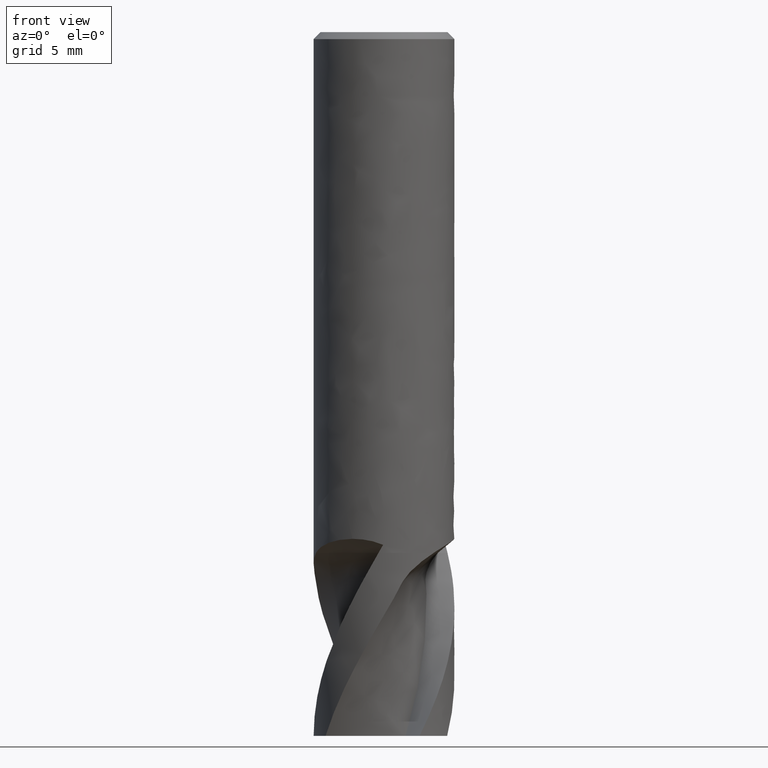
[diagram: clean part render]
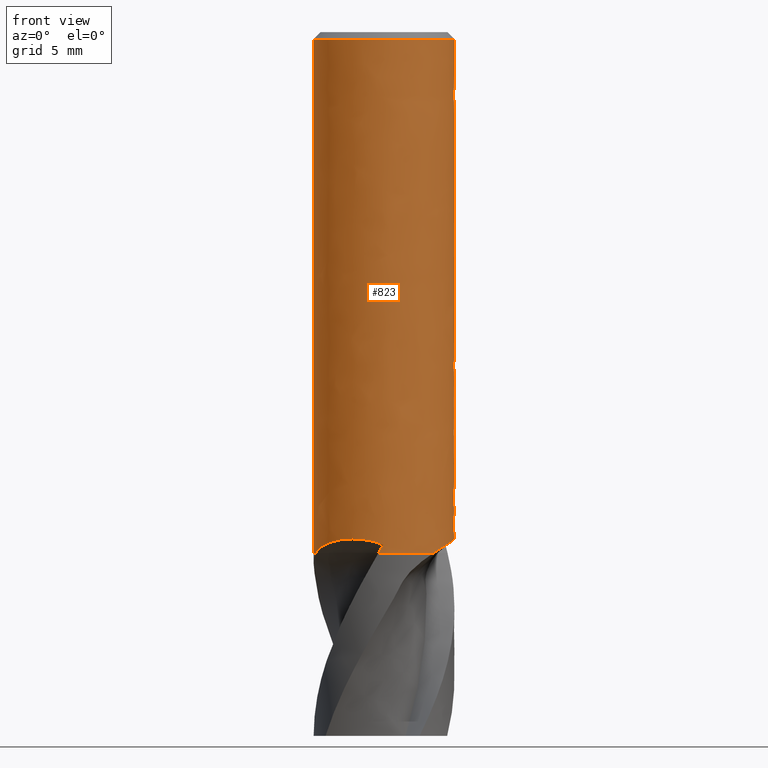
[diagram: same view with one face highlighted and labeled with its STEP entity id]
A machine part, front view. The second image highlights one B-rep face of the part: STEP entity #823.
In plain terms, the highlighted face is a freeform B-spline surface patch.
Its self-contained STEP definition (entity closure, byte-faithful):
#73 = VERTEX_POINT('', #74);
#74 = CARTESIAN_POINT('', (-5., 3.36777869765522E-16, -0.5));
#90 = EDGE_CURVE('', #73, #73, #91, .T.);
#91 = CIRCLE('', #92, 5.);
#92 = AXIS2_PLACEMENT_3D('', #93, #94, #95);
#93 = CARTESIAN_POINT('', (1.87469972832734E-33, 3.06161699786842E-17, -0.5));
#94 = DIRECTION('', (3.74939945665464E-33, 6.12323399573677E-17, -1.));
#95 = DIRECTION('', (-1., 6.12323399573677E-17, 0.));
#128 = EDGE_CURVE('', #129, #131, #133, .T.);
#129 = VERTEX_POINT('', #130);
#130 = CARTESIAN_POINT('', (3.57071421427142, 3.5, -16.5));
#131 = VERTEX_POINT('', #132);
#132 = CARTESIAN_POINT('', (3.57071421427142, 3.5, -23.5));
#133 = LINE('', #134, #135);
#134 = CARTESIAN_POINT('', (3.57071421427142, 3.5, -16.5));
#135 = VECTOR('', #136, 7.);
#136 = DIRECTION('', (0., 4.44089209850063E-16, -7.));
#139 = VERTEX_POINT('', #140);
#140 = CARTESIAN_POINT('', (-3.57071421427142, 3.5, -23.5));
#146 = EDGE_CURVE('', #147, #139, #149, .T.);
#147 = VERTEX_POINT('', #148);
#148 = CARTESIAN_POINT('', (-3.57071421427142, 3.5, -16.5));
#149 = LINE('', #150, #151);
#150 = CARTESIAN_POINT('', (-3.57071421427142, 3.5, -16.5));
#151 = VECTOR('', #152, 7.);
#152 = DIRECTION('', (-8.88178419700125E-16, 0., -7.));
#168 = EDGE_CURVE('', #139, #131, #169, .T.);
#169 = B_SPLINE_CURVE_WITH_KNOTS('', 3, (#170, #171, #172, #173, #174, #175, #176, #177, #178, #179, #180, #181, #182, #183, #184, #185, #186, #187, #188, #189, #190, #191, #192, #193, #194, #195, #196, #197, #198, #199, #200, #201, #202, #203, #204, #205, #206, #207, #208, #209, #210, #211, #212, #213, #214, #215, #216, #217, #218, #219, #220, #221, #222, #223, #224, #225, #226, #227, #228, #229, #230, #231, #232, #233, #234, #235, #236, #237, #238, #239, #240, #241, #242, #243, #244, #245), .UNSPECIFIED., .F., .U., (4, 3, 3, 3, 3, 3, 3, 3, 3, 3, 3, 3, 3, 3, 3, 3, 3, 3, 3, 3, 3, 3, 3, 3, 3, 4), (0., 0.443468649789136, 0.886759988140893, 1.32984152591458, 1.77267283862577, 2.21520517630396, 2.51020893408757, 2.80508585275751, 3.09982399025188, 3.39441275289527, 3.68884404188132, 3.98311346905247, 4.33160163163529, 4.62744317434539, 4.92482118336704, 5.22201870337627, 5.51902941012041, 5.81585394870993, 6.11249887518107, 6.40897511357989, 6.70529631155348, 7.00147737543795, 7.2975333287756, 7.74176412024763, 8.18566547319176, 8.66341025846285), .UNSPECIFIED.);
#170 = CARTESIAN_POINT('', (-3.57071421427142, 3.5, -23.5));
#171 = CARTESIAN_POINT('', (-3.48700730382718, 3.58539812998743, -23.5869017684212));
#172 = CARTESIAN_POINT('', (-3.39916377603425, 3.66888595387015, -23.6718595952275));
#173 = CARTESIAN_POINT('', (-3.30719006709263, 3.74999918134983, -23.7544010151786));
#174 = CARTESIAN_POINT('', (-3.21525313186779, 3.83107997744351, -23.8369094327116));
#175 = CARTESIAN_POINT('', (-3.11906671622979, 3.90989436363995, -23.9171115347777));
#176 = CARTESIAN_POINT('', (-3.018700637755, 3.98590597726775, -23.9944615147571));
#177 = CARTESIAN_POINT('', (-2.91838206045937, 4.06188161617847, -24.0717748865984));
#178 = CARTESIAN_POINT('', (-2.81373073052818, 4.13517346377029, -24.1463572125526));
#179 = CARTESIAN_POINT('', (-2.70491450565913, 4.20516795349213, -24.2175841227608));
#180 = CARTESIAN_POINT('', (-2.59615973346718, 4.27512291465305, -24.2887708084133));
#181 = CARTESIAN_POINT('', (-2.48304396851809, 4.34190978304565, -24.3567336194432));
#182 = CARTESIAN_POINT('', (-2.36587881626761, 4.40484022715244, -24.4207721046093));
#183 = CARTESIAN_POINT('', (-2.24879276740087, 4.46772818412912, -24.4847673545577));
#184 = CARTESIAN_POINT('', (-2.12740790123163, 4.52689698961025, -24.5449779684482));
#185 = CARTESIAN_POINT('', (-2.00223466237746, 4.58159975955716, -24.6006439115622));
#186 = CARTESIAN_POINT('', (-1.91879087151313, 4.61806607246025, -24.6377523011669));
#187 = CARTESIAN_POINT('', (-1.83355420105374, 4.65259752685798, -24.6728917644521));
#188 = CARTESIAN_POINT('', (-1.74673807718801, 4.68496596462576, -24.7058301260235));
#189 = CARTESIAN_POINT('', (-1.65995928057631, 4.71732048533706, -24.7387543254954));
#190 = CARTESIAN_POINT('', (-1.57149440783041, 4.74755320636072, -24.7695193659188));
#191 = CARTESIAN_POINT('', (-1.48161398798959, 4.77543924582795, -24.7978964058413));
#192 = CARTESIAN_POINT('', (-1.39177586956178, 4.80331216098096, -24.8262600903647));
#193 = CARTESIAN_POINT('', (-1.30040095201485, 4.82887767849311, -24.8522757499902));
#194 = CARTESIAN_POINT('', (-1.20782059197667, 4.85192430048093, -24.8757281629081));
#195 = CARTESIAN_POINT('', (-1.11528715215589, 4.87495924231852, -24.8991686900187));
#196 = CARTESIAN_POINT('', (-1.02141258642229, 4.89551097389567, -24.92008228401));
#197 = CARTESIAN_POINT('', (-0.92658859079542, 4.91339328605068, -24.9382794570624));
#198 = CARTESIAN_POINT('', (-0.831815283732707, 4.93126603914081, -24.9564669027396));
#199 = CARTESIAN_POINT('', (-0.735943631251918, 4.94649964746766, -24.9719687351947));
#200 = CARTESIAN_POINT('', (-0.63941961200005, 4.95894571051043, -24.9846339409604));
#201 = CARTESIAN_POINT('', (-0.542948656242189, 4.97138493140556, -24.9972921841061));
#202 = CARTESIAN_POINT('', (-0.445665514944968, 4.98105970853072, -25.007137308834));
#203 = CARTESIAN_POINT('', (-0.348058242038245, 4.98787083434899, -25.0140683608211));
#204 = CARTESIAN_POINT('', (-0.232466963946686, 4.99593690068945, -25.0222764495614));
#205 = CARTESIAN_POINT('', (-0.11616272086094, 5., -25.0264110894582));
#206 = CARTESIAN_POINT('', (4.72269969473152E-16, 5., -25.0264110894582));
#207 = CARTESIAN_POINT('', (0.0986138475700333, 5., -25.0264110894582));
#208 = CARTESIAN_POINT('', (0.197314628692681, 4.9970748006527, -25.0234343849765));
#209 = CARTESIAN_POINT('', (0.295578376007081, 4.9912556960786, -25.0175128211414));
#210 = CARTESIAN_POINT('', (0.394352460497299, 4.98540636972408, -25.0115605033991));
#211 = CARTESIAN_POINT('', (0.492858652975935, 4.97662298904286, -25.0026224702826));
#212 = CARTESIAN_POINT('', (0.590587307962138, 4.96499815021859, -24.9907929483529));
#213 = CARTESIAN_POINT('', (0.688256648043103, 4.9533803669116, -24.9789706061698));
#214 = CARTESIAN_POINT('', (0.785316321360413, 4.9389053875585, -24.964240760167));
#215 = CARTESIAN_POINT('', (0.88129942868599, 4.92171832970943, -24.9467510830363));
#216 = CARTESIAN_POINT('', (0.977222202676108, 4.90454207535022, -24.9292723996168));
#217 = CARTESIAN_POINT('', (1.07222564487661, 4.88463012016027, -24.909009846807));
#218 = CARTESIAN_POINT('', (1.16589904343752, 4.86216818101878, -24.8861524114761));
#219 = CARTESIAN_POINT('', (1.25951372693075, 4.83972032116018, -24.8633093033276));
#220 = CARTESIAN_POINT('', (1.35194225444139, 4.81469255915962, -24.8378408676863));
#221 = CARTESIAN_POINT('', (1.44283688724849, 4.78729795571522, -24.8099639166937));
#222 = CARTESIAN_POINT('', (1.5336765186139, 4.75991992907671, -24.7821038343814));
#223 = CARTESIAN_POINT('', (1.62311127917806, 4.7301406002008, -24.7518001691595));
#224 = CARTESIAN_POINT('', (1.71085713788038, 4.69818772014953, -24.7192846821926));
#225 = CARTESIAN_POINT('', (1.79855309962361, 4.6662530102042, -24.6867876852598));
#226 = CARTESIAN_POINT('', (1.88467390034474, 4.63210744654394, -24.6520409072419));
#227 = CARTESIAN_POINT('', (1.9689953770587, 4.59598272463262, -24.6152801231559));
#228 = CARTESIAN_POINT('', (2.05327275837509, 4.55987689392243, -24.5785385628958));
#229 = CARTESIAN_POINT('', (2.13584972519196, 4.52175325222978, -24.5397436632623));
#230 = CARTESIAN_POINT('', (2.2165553058254, 4.48183919571166, -24.499126824266));
#231 = CARTESIAN_POINT('', (2.29722271975626, 4.441944015062, -24.4585291934929));
#232 = CARTESIAN_POINT('', (2.37610387199879, 4.40021961589676, -24.4160701364351));
#233 = CARTESIAN_POINT('', (2.45307301645999, 4.35688337873714, -24.3719708611179));
#234 = CARTESIAN_POINT('', (2.53000964820203, 4.3135654473404, -24.3278902138803));
#235 = CARTESIAN_POINT('', (2.60510699224168, 4.268597611965, -24.2821306121563));
#236 = CARTESIAN_POINT('', (2.67827641976912, 4.22218372638007, -24.2348994990485));
#237 = CARTESIAN_POINT('', (2.78806685747398, 4.15253987393854, -24.164029399929));
#238 = CARTESIAN_POINT('', (2.89367568039574, 4.07953773941852, -24.0897418881387));
#239 = CARTESIAN_POINT('', (2.99492394308079, 4.00380201498053, -24.0126726550385));
#240 = CARTESIAN_POINT('', (3.09609712074416, 3.92812245563972, -23.9356605759564));
#241 = CARTESIAN_POINT('', (3.19307732202845, 3.84959555644267, -23.8557510227863));
#242 = CARTESIAN_POINT('', (3.28578814351442, 3.7687658823467, -23.7734981488547));
#243 = CARTESIAN_POINT('', (3.38556732014761, 3.68177368230406, -23.6849742429604));
#244 = CARTESIAN_POINT('', (3.48053751299862, 3.59199863686598, -23.5936184930182));
#245 = CARTESIAN_POINT('', (3.57071421427142, 3.5, -23.5));
#256 = EDGE_CURVE('', #147, #129, #257, .T.);
#257 = B_SPLINE_CURVE_WITH_KNOTS('', 3, (#258, #259, #260, #261, #262, #263, #264, #265, #266, #267, #268, #269, #270, #271, #272, #273, #274, #275, #276, #277, #278, #279, #280, #281, #282, #283, #284, #285, #286, #287, #288, #289, #290, #291, #292, #293, #294, #295, #296, #297, #298, #299, #300, #301, #302, #303, #304, #305, #306, #307, #308, #309, #310, #311, #312, #313, #314, #315, #316, #317, #318, #319, #320, #321, #322, #323, #324, #325, #326, #327, #328, #329, #330, #331, #332, #333, #334, #335, #336, #337, #338, #339), .UNSPECIFIED., .F., .U., (4, 3, 3, 3, 3, 3, 3, 3, 3, 3, 3, 3, 3, 3, 3, 3, 3, 3, 3, 3, 3, 3, 3, 3, 3, 3, 3, 4), (0., 0.0341138844018456, 0.477744785271092, 0.921646138215224, 1.36587692968725, 1.66193288302491, 1.95811394690937, 2.25443514488297, 2.55091138328178, 2.84755630975292, 3.14438084834244, 3.44139155508659, 3.73858907509581, 4.03596708411747, 4.33180862682757, 4.62765016953766, 4.92502817855932, 5.22222569856855, 5.51923640531269, 5.81606094390221, 6.11270587037335, 6.40918210877216, 6.70550330674576, 7.00168437063023, 7.29774032396788, 7.74197111543991, 8.18587246838404, 8.66361725365513), .UNSPECIFIED.);
#258 = CARTESIAN_POINT('', (-3.57071421427142, 3.5, -16.5));
#259 = CARTESIAN_POINT('', (-3.56427504914016, 3.50656926241778, -16.4933150699973));
#260 = CARTESIAN_POINT('', (-3.55781171392695, 3.51312691832153, -16.4866419508691));
#261 = CARTESIAN_POINT('', (-3.55132420209363, 3.51967277053197, -16.4799808432664));
#262 = CARTESIAN_POINT('', (-3.46695794567111, 3.60479770907222, -16.3933570764815));
#263 = CARTESIAN_POINT('', (-3.37844247985145, 3.68798545467209, -16.3087046115544));
#264 = CARTESIAN_POINT('', (-3.28578814351442, 3.76876588234669, -16.2265018511453));
#265 = CARTESIAN_POINT('', (-3.19307732202845, 3.84959555644266, -16.1442489772137));
#266 = CARTESIAN_POINT('', (-3.09609712074417, 3.92812245563972, -16.0643394240436));
#267 = CARTESIAN_POINT('', (-2.9949239430808, 4.00380201498053, -15.9873273449615));
#268 = CARTESIAN_POINT('', (-2.89367568039574, 4.07953773941852, -15.9102581118613));
#269 = CARTESIAN_POINT('', (-2.78806685747399, 4.15253987393854, -15.835970600071));
#270 = CARTESIAN_POINT('', (-2.67827641976912, 4.22218372638007, -15.7651005009515));
#271 = CARTESIAN_POINT('', (-2.60510699224168, 4.268597611965, -15.7178693878437));
#272 = CARTESIAN_POINT('', (-2.53000964820203, 4.3135654473404, -15.6721097861197));
#273 = CARTESIAN_POINT('', (-2.45307301645999, 4.35688337873714, -15.6280291388821));
#274 = CARTESIAN_POINT('', (-2.3761038719988, 4.40021961589676, -15.5839298635649));
#275 = CARTESIAN_POINT('', (-2.29722271975626, 4.44194401506199, -15.5414708065071));
#276 = CARTESIAN_POINT('', (-2.2165553058254, 4.48183919571166, -15.500873175734));
#277 = CARTESIAN_POINT('', (-2.13584972519196, 4.52175325222978, -15.4602563367377));
#278 = CARTESIAN_POINT('', (-2.05327275837509, 4.55987689392243, -15.4214614371042));
#279 = CARTESIAN_POINT('', (-1.96899537705871, 4.59598272463262, -15.3847198768441));
#280 = CARTESIAN_POINT('', (-1.88467390034474, 4.63210744654394, -15.3479590927581));
#281 = CARTESIAN_POINT('', (-1.79855309962361, 4.6662530102042, -15.3132123147402));
#282 = CARTESIAN_POINT('', (-1.71085713788038, 4.69818772014953, -15.2807153178074));
#283 = CARTESIAN_POINT('', (-1.62311127917806, 4.7301406002008, -15.2481998308405));
#284 = CARTESIAN_POINT('', (-1.5336765186139, 4.75991992907671, -15.2178961656186));
#285 = CARTESIAN_POINT('', (-1.44283688724849, 4.78729795571522, -15.1900360833063));
#286 = CARTESIAN_POINT('', (-1.35194225444139, 4.81469255915962, -15.1621591323137));
#287 = CARTESIAN_POINT('', (-1.25951372693075, 4.83972032116018, -15.1366906966724));
#288 = CARTESIAN_POINT('', (-1.16589904343752, 4.86216818101878, -15.1138475885239));
#289 = CARTESIAN_POINT('', (-1.07222564487661, 4.88463012016027, -15.090990153193));
#290 = CARTESIAN_POINT('', (-0.977222202676108, 4.90454207535022, -15.0707276003832));
#291 = CARTESIAN_POINT('', (-0.88129942868599, 4.92171832970943, -15.0532489169637));
#292 = CARTESIAN_POINT('', (-0.785316321360414, 4.9389053875585, -15.0357592398331));
#293 = CARTESIAN_POINT('', (-0.688256648043104, 4.9533803669116, -15.0210293938302));
#294 = CARTESIAN_POINT('', (-0.59058730796214, 4.96499815021859, -15.0092070516471));
#295 = CARTESIAN_POINT('', (-0.492858652975936, 4.97662298904286, -14.9973775297174));
#296 = CARTESIAN_POINT('', (-0.394352460497301, 4.98540636972408, -14.9884394966009));
#297 = CARTESIAN_POINT('', (-0.295578376007082, 4.9912556960786, -14.9824871788586));
#298 = CARTESIAN_POINT('', (-0.197314628692681, 4.9970748006527, -14.9765656150235));
#299 = CARTESIAN_POINT('', (-0.0986138475700329, 5., -14.9735889105418));
#300 = CARTESIAN_POINT('', (4.72269969473152E-16, 5., -14.9735889105418));
#301 = CARTESIAN_POINT('', (0.0986138475700333, 5., -14.9735889105418));
#302 = CARTESIAN_POINT('', (0.197314628692681, 4.9970748006527, -14.9765656150235));
#303 = CARTESIAN_POINT('', (0.295578376007081, 4.9912556960786, -14.9824871788586));
#304 = CARTESIAN_POINT('', (0.394352460497299, 4.98540636972408, -14.9884394966009));
#305 = CARTESIAN_POINT('', (0.492858652975936, 4.97662298904286, -14.9973775297174));
#306 = CARTESIAN_POINT('', (0.590587307962139, 4.96499815021859, -15.0092070516471));
#307 = CARTESIAN_POINT('', (0.688256648043103, 4.9533803669116, -15.0210293938302));
#308 = CARTESIAN_POINT('', (0.785316321360413, 4.9389053875585, -15.035759239833));
#309 = CARTESIAN_POINT('', (0.881299428685989, 4.92171832970943, -15.0532489169637));
#310 = CARTESIAN_POINT('', (0.977222202676107, 4.90454207535022, -15.0707276003832));
#311 = CARTESIAN_POINT('', (1.07222564487661, 4.88463012016027, -15.090990153193));
#312 = CARTESIAN_POINT('', (1.16589904343752, 4.86216818101878, -15.1138475885239));
#313 = CARTESIAN_POINT('', (1.25951372693075, 4.83972032116018, -15.1366906966724));
#314 = CARTESIAN_POINT('', (1.35194225444139, 4.81469255915962, -15.1621591323137));
#315 = CARTESIAN_POINT('', (1.44283688724849, 4.78729795571522, -15.1900360833063));
#316 = CARTESIAN_POINT('', (1.5336765186139, 4.75991992907671, -15.2178961656186));
#317 = CARTESIAN_POINT('', (1.62311127917806, 4.7301406002008, -15.2481998308405));
#318 = CARTESIAN_POINT('', (1.71085713788038, 4.69818772014953, -15.2807153178074));
#319 = CARTESIAN_POINT('', (1.79855309962361, 4.6662530102042, -15.3132123147402));
#320 = CARTESIAN_POINT('', (1.88467390034474, 4.63210744654394, -15.3479590927581));
#321 = CARTESIAN_POINT('', (1.9689953770587, 4.59598272463262, -15.3847198768441));
#322 = CARTESIAN_POINT('', (2.05327275837509, 4.55987689392243, -15.4214614371042));
#323 = CARTESIAN_POINT('', (2.13584972519196, 4.52175325222978, -15.4602563367377));
#324 = CARTESIAN_POINT('', (2.2165553058254, 4.48183919571166, -15.500873175734));
#325 = CARTESIAN_POINT('', (2.29722271975626, 4.441944015062, -15.5414708065071));
#326 = CARTESIAN_POINT('', (2.3761038719988, 4.40021961589676, -15.5839298635649));
#327 = CARTESIAN_POINT('', (2.45307301645999, 4.35688337873714, -15.6280291388821));
#328 = CARTESIAN_POINT('', (2.53000964820203, 4.3135654473404, -15.6721097861197));
#329 = CARTESIAN_POINT('', (2.60510699224168, 4.268597611965, -15.7178693878437));
#330 = CARTESIAN_POINT('', (2.67827641976913, 4.22218372638007, -15.7651005009515));
#331 = CARTESIAN_POINT('', (2.78806685747399, 4.15253987393854, -15.835970600071));
#332 = CARTESIAN_POINT('', (2.89367568039574, 4.07953773941852, -15.9102581118613));
#333 = CARTESIAN_POINT('', (2.99492394308079, 4.00380201498053, -15.9873273449615));
#334 = CARTESIAN_POINT('', (3.09609712074417, 3.92812245563971, -16.0643394240436));
#335 = CARTESIAN_POINT('', (3.19307732202845, 3.84959555644266, -16.1442489772137));
#336 = CARTESIAN_POINT('', (3.28578814351442, 3.76876588234669, -16.2265018511453));
#337 = CARTESIAN_POINT('', (3.38556732014761, 3.68177368230406, -16.3150257570396));
#338 = CARTESIAN_POINT('', (3.48053751299862, 3.59199863686598, -16.4063815069818));
#339 = CARTESIAN_POINT('', (3.57071421427142, 3.5, -16.5));
#351 = VERTEX_POINT('', #352);
#352 = CARTESIAN_POINT('', (3.52731095075702, -3.54373778046141, -37.));
#361 = VERTEX_POINT('', #362);
#362 = CARTESIAN_POINT('', (4.36293653337814, 2.44229089293521, -36.4270534697552));
#369 = EDGE_CURVE('', #370, #361, #372, .T.);
#370 = VERTEX_POINT('', #371);
#371 = CARTESIAN_POINT('', (4.99057384604572, 0.306875686825225, -36.));
#372 = B_SPLINE_CURVE_WITH_KNOTS('', 3, (#373, #374, #375, #376, #377, #378, #379, #380, #381, #382, #383, #384, #385, #386, #387, #388, #389, #390, #391, #392, #393, #394, #395, #396, #397), .UNSPECIFIED., .F., .U., (4, 3, 3, 3, 3, 3, 3, 3, 4), (0., 0.297292817410568, 0.593889781756493, 0.889732625171369, 1.18476341058268, 1.47892815568311, 1.77218305927771, 2.06450484000588, 2.30128493672535), .UNSPECIFIED.);
#373 = CARTESIAN_POINT('', (4.99057384604568, 0.306875686825796, -36.));
#374 = CARTESIAN_POINT('', (4.98449172044209, 0.405786412793064, -36.0001072975331));
#375 = CARTESIAN_POINT('', (4.97546019209883, 0.504578651594521, -36.0021310116373));
#376 = CARTESIAN_POINT('', (4.96352169618267, 0.602870111652481, -36.0062049128296));
#377 = CARTESIAN_POINT('', (4.9516111438914, 0.700931507579377, -36.0102692785186));
#378 = CARTESIAN_POINT('', (4.93679119359343, 0.79862266802968, -36.0163794884819));
#379 = CARTESIAN_POINT('', (4.91914602663496, 0.895545849547315, -36.024683864616));
#380 = CARTESIAN_POINT('', (4.90154572389069, 0.992222596311151, -36.0329671262256));
#381 = CARTESIAN_POINT('', (4.8811100076292, 1.08826701167182, -36.0434446281817));
#382 = CARTESIAN_POINT('', (4.85797120925197, 1.18326486049359, -36.0562813401173));
#383 = CARTESIAN_POINT('', (4.83489592448284, 1.2780019500468, -36.0690828166063));
#384 = CARTESIAN_POINT('', (4.80909867234062, 1.3718336727055, -36.0842488196207));
#385 = CARTESIAN_POINT('', (4.78076832495479, 1.46432722542092, -36.1019631309979));
#386 = CARTESIAN_POINT('', (4.75252113913743, 1.55654927038492, -36.1196254433686));
#387 = CARTESIAN_POINT('', (4.72171201438087, 1.64758065615118, -36.1398478725072));
#388 = CARTESIAN_POINT('', (4.68859764426762, 1.73696635838696, -36.1628348490383));
#389 = CARTESIAN_POINT('', (4.65558569576972, 1.82607559369979, -36.1857507276364));
#390 = CARTESIAN_POINT('', (4.62022788998151, 1.91369414700783, -36.2114514542524));
#391 = CARTESIAN_POINT('', (4.58286422566428, 1.99933876297303, -36.2401627481722));
#392 = CARTESIAN_POINT('', (4.54561945071299, 2.08471086192806, -36.2687826841486));
#393 = CARTESIAN_POINT('', (4.50631383468303, 2.16827322819064, -36.3004453229257));
#394 = CARTESIAN_POINT('', (4.46539220828715, 2.24950492912739, -36.3353952947782));
#395 = CARTESIAN_POINT('', (4.43224576729394, 2.31530245525281, -36.3637047067384));
#396 = CARTESIAN_POINT('', (4.39799293413867, 2.37966573552696, -36.3942119986312));
#397 = CARTESIAN_POINT('', (4.36293653337814, 2.44229089293521, -36.4270534697552));
#399 = EDGE_CURVE('', #370, #400, #402, .T.);
#400 = VERTEX_POINT('', #401);
#401 = CARTESIAN_POINT('', (4.99156903682688, 0.290238782024738, -36.));
#402 = CIRCLE('', #403, 5.);
#403 = AXIS2_PLACEMENT_3D('', #404, #405, #406);
#404 = CARTESIAN_POINT('', (-4.71844785465692E-16, 2.05962794139954E-16, -36.));
#405 = DIRECTION('', (3.74939945665465E-33, 6.12323399573677E-17, -1.));
#406 = DIRECTION('', (-1., 4.60912628822424E-16, 2.4473359322044E-32));
#408 = EDGE_CURVE('', #400, #351, #409, .T.);
#409 = B_SPLINE_CURVE_WITH_KNOTS('', 3, (#410, #411, #412, #413, #414, #415, #416, #417, #418, #419, #420, #421, #422, #423, #424, #425, #426, #427, #428, #429, #430, #431, #432, #433, #434, #435, #436, #437, #438, #439, #440, #441, #442, #443, #444, #445, #446, #447, #448, #449, #450, #451, #452, #453, #454, #455, #456, #457, #458, #459, #460, #461), .UNSPECIFIED., .F., .U., (4, 3, 3, 3, 3, 3, 3, 3, 3, 3, 3, 3, 3, 3, 3, 3, 3, 4), (0., 0.196328274218878, 0.283724184664573, 0.309671133215559, 0.606587383718583, 0.902902894542017, 1.19867043664042, 1.49393968732883, 1.78875743695587, 2.0831679408312, 2.37721336292592, 2.6709342825692, 2.96437025064256, 3.25756039108627, 3.55054404877905, 3.84336148685683, 4.13605463524829, 4.37847124815959), .UNSPECIFIED.);
#410 = CARTESIAN_POINT('', (4.99156903682686, 0.290238782024931, -36.));
#411 = CARTESIAN_POINT('', (4.9953678398847, 0.224906411250093, -36.0000707704932));
#412 = CARTESIAN_POINT('', (4.99788405938839, 0.159482882777928, -36.0009742091002));
#413 = CARTESIAN_POINT('', (4.99911493336842, 0.0940738166328313, -36.0026752674377));
#414 = CARTESIAN_POINT('', (4.99966285929787, 0.0649568445110251, -36.003432496842));
#415 = CARTESIAN_POINT('', (4.99995631846672, 0.0358376729816512, -36.0043479107516));
#416 = CARTESIAN_POINT('', (4.99999547688377, 0.00672541015880044, -36.0054185669469));
#417 = CARTESIAN_POINT('', (5.00000710261577, -0.00191772178885129, -36.0057364337793));
#418 = CARTESIAN_POINT('', (4.99999631632729, -0.0105604201928704, -36.0060679905637));
#419 = CARTESIAN_POINT('', (4.99996312645978, -0.019202448866852, -36.0064131617908));
#420 = CARTESIAN_POINT('', (4.99958332800309, -0.118094954302552, -36.0103630268914));
#421 = CARTESIAN_POINT('', (4.99626539013171, -0.216962354613096, -36.0160983653372));
#422 = CARTESIAN_POINT('', (4.99003859099852, -0.315459760263443, -36.0235119586115));
#423 = CARTESIAN_POINT('', (4.98382439031796, -0.413757879752085, -36.0309105522364));
#424 = CARTESIAN_POINT('', (4.97470616861118, -0.511801456299701, -36.0399892316438));
#425 = CARTESIAN_POINT('', (4.96274086427836, -0.609264404033005, -36.0506513648302));
#426 = CARTESIAN_POINT('', (4.950797687078, -0.706547116020097, -36.0612937808054));
#427 = CARTESIAN_POINT('', (4.93600485292913, -0.803360001880745, -36.0735257136159));
#428 = CARTESIAN_POINT('', (4.9184436410093, -0.899395435954151, -36.0872598240433));
#429 = CARTESIAN_POINT('', (4.90091201516571, -0.995269075289992, -36.1009707960654));
#430 = CARTESIAN_POINT('', (4.88060264913449, -1.09047121473924, -36.1161936839171));
#431 = CARTESIAN_POINT('', (4.85761838599324, -1.18471246134259, -36.1328494476195));
#432 = CARTESIAN_POINT('', (4.8346692684663, -1.27880960210774, -36.14947974272));
#433 = CARTESIAN_POINT('', (4.80902971792588, -1.37204677477957, -36.1675558613519));
#434 = CARTESIAN_POINT('', (4.78082179188888, -1.46415265399492, -36.1870063249256));
#435 = CARTESIAN_POINT('', (4.75265283079906, -1.55613130298731, -36.2064299206506));
#436 = CARTESIAN_POINT('', (4.72189438334523, -1.64707441194688, -36.2272436278036));
#437 = CARTESIAN_POINT('', (4.68868572405433, -1.73672858589046, -36.249383012457));
#438 = CARTESIAN_POINT('', (4.65551824493977, -1.82627158477395, -36.2714949433142));
#439 = CARTESIAN_POINT('', (4.61987444674298, -1.91461612158488, -36.2949508093752));
#440 = CARTESIAN_POINT('', (4.5819091290884, -2.00152660056678, -36.3196929011343));
#441 = CARTESIAN_POINT('', (4.54398570917383, -2.08834116694007, -36.3444076880323));
#442 = CARTESIAN_POINT('', (4.50371022134617, -2.17380679436317, -36.3704291763985));
#443 = CARTESIAN_POINT('', (4.46125157988641, -2.25770554788727, -36.3977062423423));
#444 = CARTESIAN_POINT('', (4.41883412942032, -2.34152290754415, -36.424956845606));
#445 = CARTESIAN_POINT('', (4.37419906413099, -2.4238531193806, -36.4534854956819));
#446 = CARTESIAN_POINT('', (4.32752827936271, -2.50449575589898, -36.4832476912764));
#447 = CARTESIAN_POINT('', (4.28089659330639, -2.58507083359587, -36.5129849534244));
#448 = CARTESIAN_POINT('', (4.23219131227822, -2.66403266411864, -36.5439800443456));
#449 = CARTESIAN_POINT('', (4.18160647053445, -2.74119815511108, -36.5761953021597));
#450 = CARTESIAN_POINT('', (4.13105725378565, -2.81830930136044, -36.6083878719836));
#451 = CARTESIAN_POINT('', (4.0785876510893, -2.89369306553424, -36.6418265708492));
#452 = CARTESIAN_POINT('', (4.02440332142349, -2.96718349727743, -36.6764809876318));
#453 = CARTESIAN_POINT('', (3.97024973237471, -3.04063223539387, -36.7111157437825));
#454 = CARTESIAN_POINT('', (3.914338067152, -3.1122512867747, -36.7469937702078));
#455 = CARTESIAN_POINT('', (3.85688548797782, -3.1818916280455, -36.7840925395311));
#456 = CARTESIAN_POINT('', (3.79945729520321, -3.25150240968273, -36.8211755618605));
#457 = CARTESIAN_POINT('', (3.74044269531267, -3.31919290613854, -36.8595084333902));
#458 = CARTESIAN_POINT('', (3.68007072944491, -3.38483078251821, -36.8990774075014));
#459 = CARTESIAN_POINT('', (3.63006898679774, -3.43919389883334, -36.9318495333033));
#460 = CARTESIAN_POINT('', (3.57909776107336, -3.49219102546708, -36.9654950258711));
#461 = CARTESIAN_POINT('', (3.52731095075702, -3.54373778046141, -37.));
#476 = VERTEX_POINT('', #477);
#477 = CARTESIAN_POINT('', (4.51357657803262, 2.15119187294748, -37.));
#483 = EDGE_CURVE('', #361, #476, #484, .T.);
#484 = B_SPLINE_CURVE_WITH_KNOTS('', 3, (#485, #486, #487, #488, #489, #490, #491, #492, #493, #494, #495, #496, #497), .UNSPECIFIED., .F., .U., (4, 3, 3, 3, 4), (0., 0.197004743208758, 0.39400852260156, 0.591011961106498, 0.660101457707535), .UNSPECIFIED.);
#485 = CARTESIAN_POINT('', (4.36293653337814, 2.44229089293521, -36.4270534697552));
#486 = CARTESIAN_POINT('', (4.3788561607192, 2.4138518876042, -36.4840631812248));
#487 = CARTESIAN_POINT('', (4.39450229950925, 2.38524899496652, -36.5410684011467));
#488 = CARTESIAN_POINT('', (4.40987000163077, 2.3564903073675, -36.5980691939467));
#489 = CARTESIAN_POINT('', (4.42523762856813, 2.32773176046602, -36.655069707879));
#490 = CARTESIAN_POINT('', (4.44032719086826, 2.29881672931332, -36.7120671319618));
#491 = CARTESIAN_POINT('', (4.45513403624678, 2.26975344896213, -36.7690615144155));
#492 = CARTESIAN_POINT('', (4.4699408560041, 2.24069021890092, -36.8260557982483));
#493 = CARTESIAN_POINT('', (4.48446531668617, 2.21147803639934, -36.8830483760992));
#494 = CARTESIAN_POINT('', (4.49870295924938, 2.18212549695036, -36.94003942456));
#495 = CARTESIAN_POINT('', (4.50369612873385, 2.17183150315064, -36.9600262982857));
#496 = CARTESIAN_POINT('', (4.50865409141388, 2.16152011032484, -36.9800132591616));
#497 = CARTESIAN_POINT('', (4.51357657803262, 2.15119187294748, -37.));
#513 = VERTEX_POINT('', #514);
#514 = CARTESIAN_POINT('', (1.30531146685175, 4.82660978063333, -37.));
#523 = VERTEX_POINT('', #524);
#524 = CARTESIAN_POINT('', (-4.29655422340235, 2.55726842653709, -36.4270534697552));
#531 = EDGE_CURVE('', #532, #523, #534, .T.);
#532 = VERTEX_POINT('', #533);
#533 = CARTESIAN_POINT('', (-2.76104906361684, 4.1685258867255, -36.));
#534 = B_SPLINE_CURVE_WITH_KNOTS('', 3, (#535, #536, #537, #538, #539, #540, #541, #542, #543, #544, #545, #546, #547, #548, #549, #550, #551, #552, #553, #554, #555, #556, #557, #558, #559), .UNSPECIFIED., .F., .U., (4, 3, 3, 3, 3, 3, 3, 3, 4), (0., 0.296061269631135, 0.591451144377523, 0.886115637160019, 1.18000237767091, 1.47306449964201, 1.7652671341823, 2.05659796712953, 2.30128599850761), .UNSPECIFIED.);
#535 = CARTESIAN_POINT('', (-2.76104906361666, 4.16852588672562, -36.));
#536 = CARTESIAN_POINT('', (-2.84332495315662, 4.11402993925029, -36.0001068530487));
#537 = CARTESIAN_POINT('', (-2.92403636189943, 4.05705979420483, -36.0021142772936));
#538 = CARTESIAN_POINT('', (-3.00287726002842, 3.99784043718658, -36.0061543571147));
#539 = CARTESIAN_POINT('', (-3.0815393661939, 3.93875537525337, -36.0101852750183));
#540 = CARTESIAN_POINT('', (-3.15844119622979, 3.87735430700814, -36.0162447969732));
#541 = CARTESIAN_POINT('', (-3.2332840231431, 3.81390540334806, -36.0244793384385));
#542 = CARTESIAN_POINT('', (-3.30794306028767, 3.75061230966753, -36.0326936585342));
#543 = CARTESIAN_POINT('', (-3.38065380683767, 3.68519542244238, -36.0430833599079));
#544 = CARTESIAN_POINT('', (-3.45112708568732, 3.61797206158856, -36.0558112549946));
#545 = CARTESIAN_POINT('', (-3.52141435382289, 3.55092613345191, -36.0685055554354));
#546 = CARTESIAN_POINT('', (-3.58957524941833, 3.48198760222726, -36.0835436660908));
#547 = CARTESIAN_POINT('', (-3.65533248537474, 3.41153109635016, -36.1011069375489));
#548 = CARTESIAN_POINT('', (-3.72090521271466, 3.34127228479875, -36.1186209281199));
#549 = CARTESIAN_POINT('', (-3.78418574812639, 3.26939775005839, -36.1386722196921));
#550 = CARTESIAN_POINT('', (-3.8449111122008, 3.19635081605177, -36.1614625384129));
#551 = CARTESIAN_POINT('', (-3.90545838199676, 3.12351811280693, -36.1841860180883));
#552 = CARTESIAN_POINT('', (-3.9635623940773, 3.04940154507477, -36.2096692083785));
#553 = CARTESIAN_POINT('', (-4.01897695536385, 2.97452924548648, -36.238134910935));
#554 = CARTESIAN_POINT('', (-4.07422618445589, 2.89988033125594, -36.2665156846034));
#555 = CARTESIAN_POINT('', (-4.12689845065616, 2.82434749601878, -36.2979115487472));
#556 = CARTESIAN_POINT('', (-4.17676687373041, 2.74856662326172, -36.3325641926484));
#557 = CARTESIAN_POINT('', (-4.21865123642049, 2.68491845947675, -36.3616688608103));
#558 = CARTESIAN_POINT('', (-4.25862152090574, 2.62100045850744, -36.3931151656992));
#559 = CARTESIAN_POINT('', (-4.29655422340235, 2.55726842653709, -36.4270534697552));
#561 = EDGE_CURVE('', #532, #562, #564, .T.);
#562 = VERTEX_POINT('', #563);
#563 = CARTESIAN_POINT('', (-2.74713867681075, 4.17770619962325, -36.));
#564 = CIRCLE('', #565, 5.);
#565 = AXIS2_PLACEMENT_3D('', #566, #567, #568);
#566 = CARTESIAN_POINT('', (-4.71844785465692E-16, 2.05962794139954E-16, -36.));
#567 = DIRECTION('', (3.74939945665465E-33, 6.12323399573677E-17, -1.));
#568 = DIRECTION('', (-1., 4.60912628822424E-16, 2.4473359322044E-32));
#570 = EDGE_CURVE('', #562, #513, #571, .T.);
#571 = B_SPLINE_CURVE_WITH_KNOTS('', 3, (#572, #573, #574, #575, #576, #577, #578, #579, #580, #581, #582, #583, #584, #585, #586, #587, #588, #589, #590, #591, #592, #593, #594, #595, #596, #597, #598, #599, #600, #601, #602, #603, #604, #605, #606, #607, #608, #609, #610, #611, #612, #613, #614, #615, #616, #617, #618, #619, #620), .UNSPECIFIED., .F., .U., (4, 3, 3, 3, 3, 3, 3, 3, 3, 3, 3, 3, 3, 3, 3, 3, 4), (0., 0.29517117229672, 0.589721063477278, 0.883708213759907, 1.17718676336265, 1.47020684153445, 1.76281508480047, 2.05505522278446, 2.34696870140481, 2.63859533190958, 2.92997396540007, 2.98821629240786, 3.28246639725872, 3.57646704936943, 3.87026018613107, 4.16388908327347, 4.37844184585362), .UNSPECIFIED.);
#572 = CARTESIAN_POINT('', (-2.74713867681055, 4.17770619962338, -36.));
#573 = CARTESIAN_POINT('', (-2.66492949578337, 4.23176457759381, -36.000106400413));
#574 = CARTESIAN_POINT('', (-2.58107498937315, 4.2834236864365, -36.0020950400875));
#575 = CARTESIAN_POINT('', (-2.49588174403879, 4.33250208537444, -36.0058487984827));
#576 = CARTESIAN_POINT('', (-2.41086781484204, 4.38147718329475, -36.0095946559059));
#577 = CARTESIAN_POINT('', (-2.32441988265795, 4.42794092455115, -36.0151027103386));
#578 = CARTESIAN_POINT('', (-2.23684381993405, 4.47174794965267, -36.022267737285));
#579 = CARTESIAN_POINT('', (-2.14943507226831, 4.51547128093735, -36.0294190753665));
#580 = CARTESIAN_POINT('', (-2.06080270520889, 4.55659826494098, -36.0382292739418));
#581 = CARTESIAN_POINT('', (-1.97125039232763, 4.59501598373152, -36.0486034073526));
#582 = CARTESIAN_POINT('', (-1.88185300583405, 4.63336723948829, -36.05895959341));
#583 = CARTESIAN_POINT('', (-1.79144045997325, 4.66906106257266, -36.0708857468491));
#584 = CARTESIAN_POINT('', (-1.70031291608482, 4.70201403521886, -36.08429598392));
#585 = CARTESIAN_POINT('', (-1.60932773140969, 4.73491552881644, -36.0976852715533));
#586 = CARTESIAN_POINT('', (-1.51753309115729, 4.76511990910698, -36.1125682711563));
#587 = CARTESIAN_POINT('', (-1.42522448968971, 4.79257082931371, -36.1288671732527));
#588 = CARTESIAN_POINT('', (-1.33304562644493, 4.81998316770309, -36.14514316751));
#589 = CARTESIAN_POINT('', (-1.24025955087214, 4.84467812555621, -36.1628478321714));
#590 = CARTESIAN_POINT('', (-1.14715608470767, 4.8666243862988, -36.1819107108028));
#591 = CARTESIAN_POINT('', (-1.054169744012, 4.88854303833697, -36.200949608065));
#592 = CARTESIAN_POINT('', (-0.960774382134614, 4.90774185084275, -36.2213622458567));
#593 = CARTESIAN_POINT('', (-0.867253285153234, 4.92421280403182, -36.2430850125438));
#594 = CARTESIAN_POINT('', (-0.773836723921931, 4.94066534636493, -36.2647834980175));
#595 = CARTESIAN_POINT('', (-0.680204792103892, 4.95441209753374, -36.2878100794312));
#596 = CARTESIAN_POINT('', (-0.586633516268407, 4.9654668579692, -36.3121076707438));
#597 = CARTESIAN_POINT('', (-0.49315418803422, 4.97651075546948, -36.3363813860835));
#598 = CARTESIAN_POINT('', (-0.39964820913118, 4.98487836859708, -36.361946254496));
#599 = CARTESIAN_POINT('', (-0.306383761969461, 4.99060407069139, -36.3887515705108));
#600 = CARTESIAN_POINT('', (-0.213198626166909, 4.99632490369325, -36.4155340914938));
#601 = CARTESIAN_POINT('', (-0.12017033675308, 4.99941359052961, -36.4435791627803));
#602 = CARTESIAN_POINT('', (-0.0275587908560609, 4.99992405072827, -36.4728424826864));
#603 = CARTESIAN_POINT('', (-0.00904709740683275, 5.00002608425578, -36.4786917923179));
#604 = CARTESIAN_POINT('', (0.00944994241795781, 5.00002522319183, -36.4845903966312));
#605 = CARTESIAN_POINT('', (0.0279302916828041, 4.99992198927208, -36.4905379727905));
#606 = CARTESIAN_POINT('', (0.121296147551415, 4.99940043401718, -36.5205861353284));
#607 = CARTESIAN_POINT('', (0.214284571737738, 4.99626294960492, -36.5519001608551));
#608 = CARTESIAN_POINT('', (0.306637912029837, 4.99058846138469, -36.5844425617222));
#609 = CARTESIAN_POINT('', (0.398912959082892, 4.98491878375454, -36.616957374524));
#610 = CARTESIAN_POINT('', (0.490633823570175, 4.97671155972015, -36.6507265669242));
#611 = CARTESIAN_POINT('', (0.581552131272978, 4.96606455038714, -36.6857200680542));
#612 = CARTESIAN_POINT('', (0.672406265837983, 4.95542505606419, -36.7206888696179));
#613 = CARTESIAN_POINT('', (0.762535358172617, 4.94234031272442, -36.7569095889329));
#614 = CARTESIAN_POINT('', (0.851700150797158, 4.9269267148124, -36.7943602290534));
#615 = CARTESIAN_POINT('', (0.940815097493533, 4.91152173358721, -36.8317899330862));
#616 = CARTESIAN_POINT('', (1.02903976664688, 4.89377789975919, -36.870478732497));
#617 = CARTESIAN_POINT('', (1.11614357725645, 4.87383047663223, -36.9104136345642));
#618 = CARTESIAN_POINT('', (1.17978977618107, 4.85925502176422, -36.9395938128275));
#619 = CARTESIAN_POINT('', (1.24288460491844, 4.84349254149958, -36.9694610966089));
#620 = CARTESIAN_POINT('', (1.30531146685175, 4.82660978063333, -37.));
#635 = VERTEX_POINT('', #636);
#636 = CARTESIAN_POINT('', (-4.11977509940346, 2.83327604202895, -37.));
#642 = EDGE_CURVE('', #523, #635, #643, .T.);
#643 = B_SPLINE_CURVE_WITH_KNOTS('', 3, (#644, #645, #646, #647, #648, #649, #650, #651, #652, #653, #654, #655, #656), .UNSPECIFIED., .F., .U., (4, 3, 3, 3, 4), (0., 0.197067216696213, 0.394133561290354, 0.591199641206873, 0.660101456409151), .UNSPECIFIED.);
#644 = CARTESIAN_POINT('', (-4.29655422340235, 2.55726842653709, -36.4270534697552));
#645 = CARTESIAN_POINT('', (-4.27987984995243, 2.58528361216461, -36.4840812599545));
#646 = CARTESIAN_POINT('', (-4.26292662480648, 2.61314379524182, -36.5411045559736));
#647 = CARTESIAN_POINT('', (-4.24569908643393, 2.64084063651219, -36.5981234222898));
#648 = CARTESIAN_POINT('', (-4.22847162430021, 2.66853735521284, -36.6551420362744));
#649 = CARTESIAN_POINT('', (-4.21096943735438, 2.69607139942863, -36.7121575590925));
#650 = CARTESIAN_POINT('', (-4.19319733595842, 2.7234346149139, -36.7691700390365));
#651 = CARTESIAN_POINT('', (-4.17542525843197, 2.75079779364793, -36.8261824424075));
#652 = CARTESIAN_POINT('', (-4.15738283571517, 2.77799080568131, -36.8831931398151));
#653 = CARTESIAN_POINT('', (-4.13907528757701, 2.80500548373248, -36.940202308193));
#654 = CARTESIAN_POINT('', (-4.13267427072441, 2.81445084518493, -36.9601348870827));
#655 = CARTESIAN_POINT('', (-4.12624076024961, 2.82387453361254, -36.9800675530798));
#656 = CARTESIAN_POINT('', (-4.11977509940346, 2.83327604202895, -37.));
#672 = VERTEX_POINT('', #673);
#673 = CARTESIAN_POINT('', (-4.83262241760878, -1.28287200017192, -37.));
#682 = VERTEX_POINT('', #683);
#683 = CARTESIAN_POINT('', (-0.0663823099757972, -4.99955931947229, -36.4270534697552));
#690 = EDGE_CURVE('', #691, #682, #693, .T.);
#691 = VERTEX_POINT('', #692);
#692 = CARTESIAN_POINT('', (-2.22952478242652, -4.47540157355135, -36.));
#693 = B_SPLINE_CURVE_WITH_KNOTS('', 3, (#694, #695, #696, #697, #698, #699, #700, #701, #702, #703, #704, #705, #706, #707, #708, #709, #710, #711, #712, #713, #714, #715, #716, #717, #718), .UNSPECIFIED., .F., .U., (4, 3, 3, 3, 3, 3, 3, 3, 4), (0., 0.294912893634174, 0.589158773976308, 0.88268825101133, 1.17545496866307, 1.467419836193, 1.75855789805925, 2.04886925512164, 2.30128664768751), .UNSPECIFIED.);
#694 = CARTESIAN_POINT('', (-2.22952478242632, -4.47540157355146, -36.));
#695 = CARTESIAN_POINT('', (-2.14153459212146, -4.51923592152471, -36.0001064385822));
#696 = CARTESIAN_POINT('', (-2.05219470448782, -4.56049827983577, -36.0020987323624));
#697 = CARTESIAN_POINT('', (-1.96184887767039, -4.59903783211048, -36.0061074065119));
#698 = CARTESIAN_POINT('', (-1.87170738870548, -4.63749021832975, -36.0101070141235));
#699 = CARTESIAN_POINT('', (-1.78044834919571, -4.67328118300061, -36.0161189682981));
#700 = CARTESIAN_POINT('', (-1.68844872668779, -4.70628737938371, -36.0242878946984));
#701 = CARTESIAN_POINT('', (-1.59667309655571, -4.73921321525941, -36.0324369321342));
#702 = CARTESIAN_POINT('', (-1.50403720333492, -4.76941149383725, -36.0427433062874));
#703 = CARTESIAN_POINT('', (-1.41095519431411, -4.79679116072797, -36.0553677747113));
#704 = CARTESIAN_POINT('', (-1.31811506619914, -4.82409967940543, -36.0679594374632));
#705 = CARTESIAN_POINT('', (-1.22470027135011, -4.8486420212324, -36.0828748128012));
#706 = CARTESIAN_POINT('', (-1.13116792639516, -4.87036539925855, -36.1002929024203));
#707 = CARTESIAN_POINT('', (-1.03789175441916, -4.89202927976579, -36.117663286148));
#708 = CARTESIAN_POINT('', (-0.944359403864017, -4.91092110406275, -36.1375485440308));
#709 = CARTESIAN_POINT('', (-0.85107945176281, -4.92703397256271, -36.1601477522619));
#710 = CARTESIAN_POINT('', (-0.758063656076576, -4.94310121156264, -36.1826829625418));
#711 = CARTESIAN_POINT('', (-0.665149771746325, -4.95642987332254, -36.2079528650883));
#712 = CARTESIAN_POINT('', (-0.572910309238143, -4.96706893223445, -36.2361773597738));
#713 = CARTESIAN_POINT('', (-0.480932766474405, -4.97767778087067, -36.2643217092348));
#714 = CARTESIAN_POINT('', (-0.389464747686733, -4.98562947724278, -36.2954533409868));
#715 = CARTESIAN_POINT('', (-0.299160949592836, -4.99104224849266, -36.3298109661381));
#716 = CARTESIAN_POINT('', (-0.220644389013506, -4.99574849773926, -36.3596839350884));
#717 = CARTESIAN_POINT('', (-0.142884830356451, -4.99854354714171, -36.3920431009616));
#718 = CARTESIAN_POINT('', (-0.0663823099757972, -4.99955931947229, -36.4270534697552));
#720 = EDGE_CURVE('', #691, #721, #723, .T.);
#721 = VERTEX_POINT('', #722);
#722 = CARTESIAN_POINT('', (-2.24443036001848, -4.4679449816473, -36.));
#723 = CIRCLE('', #724, 5.);
#724 = AXIS2_PLACEMENT_3D('', #725, #726, #727);
#725 = CARTESIAN_POINT('', (-4.71844785465692E-16, 2.05962794139954E-16, -36.));
#726 = DIRECTION('', (3.74939945665465E-33, 6.12323399573677E-17, -1.));
#727 = DIRECTION('', (-1., 4.60912628822424E-16, 2.4473359322044E-32));
#729 = EDGE_CURVE('', #721, #672, #730, .T.);
#730 = B_SPLINE_CURVE_WITH_KNOTS('', 3, (#731, #732, #733, #734, #735, #736, #737, #738, #739, #740, #741, #742, #743, #744, #745, #746, #747, #748, #749, #750, #751, #752, #753, #754, #755, #756, #757, #758, #759, #760, #761, #762, #763, #764, #765, #766, #767, #768, #769, #770, #771, #772, #773, #774, #775, #776), .UNSPECIFIED., .F., .U., (4, 3, 3, 3, 3, 3, 3, 3, 3, 3, 3, 3, 3, 3, 3, 4), (0., 0.296323480027746, 0.592017729774054, 0.887139642298491, 1.18174233522828, 1.47587535412326, 1.76958505065663, 2.06291506058817, 2.35590684147391, 2.64860025115919, 2.94103416089936, 3.23324710462948, 3.52527797017998, 3.81716673983684, 4.10895528650143, 4.37843344536917), .UNSPECIFIED.);
#731 = CARTESIAN_POINT('', (-2.24443036002703, -4.46794498164301, -36.));
#732 = CARTESIAN_POINT('', (-2.33269410878588, -4.42360651323795, -36.0001068157857));
#733 = CARTESIAN_POINT('', (-2.41969305536096, -4.37662285475843, -36.0021105967916));
#734 = CARTESIAN_POINT('', (-2.50511318415753, -4.32717089269191, -36.0058928684943));
#735 = CARTESIAN_POINT('', (-2.59035192695094, -4.27782393975936, -36.0096671087043));
#736 = CARTESIAN_POINT('', (-2.67412081715025, -4.22596033500425, -36.0152168644939));
#737 = CARTESIAN_POINT('', (-2.75613793947172, -4.17177464139718, -36.0224357411598));
#738 = CARTESIAN_POINT('', (-2.83799631182772, -4.11769382804859, -36.0296406451773));
#739 = CARTESIAN_POINT('', (-2.91820411956643, -4.06123785709856, -36.0385165517008));
#740 = CARTESIAN_POINT('', (-2.99650909764345, -4.0026157981675, -36.0489675207545));
#741 = CARTESIAN_POINT('', (-3.074676310691, -3.94409687533167, -36.059400103007));
#742 = CARTESIAN_POINT('', (-3.15103427094165, -3.8833547315816, -36.0714138182592));
#743 = CARTESIAN_POINT('', (-3.22535843997965, -3.82061028288048, -36.0849219029474));
#744 = CARTESIAN_POINT('', (-3.29956411677982, -3.75796586530293, -36.0984084522024));
#745 = CARTESIAN_POINT('', (-3.37182209280876, -3.69325858526458, -36.1133990774844));
#746 = CARTESIAN_POINT('', (-3.44193400204157, -3.62671894769778, -36.1298152082714));
#747 = CARTESIAN_POINT('', (-3.5119450047556, -3.56027507536204, -36.1462077126214));
#748 = CARTESIAN_POINT('', (-3.57988869844868, -3.49193547762036, -36.164038604526));
#749 = CARTESIAN_POINT('', (-3.64559160074432, -3.42193832214762, -36.1832367744001));
#750 = CARTESIAN_POINT('', (-3.71120956709131, -3.3520316539227, -36.2024101262719));
#751 = CARTESIAN_POINT('', (-3.77465833866327, -3.28040183271212, -36.2229664281475));
#752 = CARTESIAN_POINT('', (-3.83578822578006, -3.20729304663092, -36.244841516505));
#753 = CARTESIAN_POINT('', (-3.89684762606397, -3.13426855985125, -36.2666913814281));
#754 = CARTESIAN_POINT('', (-3.95565276746039, -3.05969783346041, -36.2898781722564));
#755 = CARTESIAN_POINT('', (-4.0120768174041, -2.98382968871358, -36.3143443495272));
#756 = CARTESIAN_POINT('', (-4.06844340733489, -2.90803880507406, -36.3387856114141));
#757 = CARTESIAN_POINT('', (-4.1224867680266, -2.83088205899358, -36.3645265980037));
#758 = CARTESIAN_POINT('', (-4.17410211986141, -2.75261175848838, -36.3915162497188));
#759 = CARTESIAN_POINT('', (-4.22567170988359, -2.67441085188824, -36.4184819725961));
#760 = CARTESIAN_POINT('', (-4.27486461322014, -2.59502724782796, -36.4467186771876));
#761 = CARTESIAN_POINT('', (-4.32159742094083, -2.51471583510296, -36.4761818115608));
#762 = CARTESIAN_POINT('', (-4.36829491688092, -2.43446510649098, -36.5056226832926));
#763 = CARTESIAN_POINT('', (-4.41257733573166, -2.3532171559997, -36.5363141037928));
#764 = CARTESIAN_POINT('', (-4.45438208194179, -2.27122880134871, -36.5682182319596));
#765 = CARTESIAN_POINT('', (-4.49616077957244, -2.1892915337241, -36.6001024806321));
#766 = CARTESIAN_POINT('', (-4.53550076614316, -2.10654456337972, -36.6332252260833));
#767 = CARTESIAN_POINT('', (-4.57235984263908, -2.02324627008823, -36.6675557304417));
#768 = CARTESIAN_POINT('', (-4.60920098430676, -1.93998850794198, -36.7018695303203));
#769 = CARTESIAN_POINT('', (-4.64359437462333, -1.85611057638447, -36.7374184617199));
#770 = CARTESIAN_POINT('', (-4.67551796455215, -1.77187238907156, -36.7741794973878));
#771 = CARTESIAN_POINT('', (-4.70743059319009, -1.68766312580121, -36.8109279107785));
#772 = CARTESIAN_POINT('', (-4.73690103577425, -1.60302549687327, -36.848917349319));
#773 = CARTESIAN_POINT('', (-4.76392736529796, -1.51822134689549, -36.8881333592241));
#774 = CARTESIAN_POINT('', (-4.78888723985183, -1.4399013906752, -36.9243508813583));
#775 = CARTESIAN_POINT('', (-4.81178220703772, -1.36137778155923, -36.9616431531306));
#776 = CARTESIAN_POINT('', (-4.83262241760878, -1.28287200017192, -37.));
#791 = VERTEX_POINT('', #792);
#792 = CARTESIAN_POINT('', (-0.393801478629163, -4.98446791497643, -37.));
#798 = EDGE_CURVE('', #682, #791, #799, .T.);
#799 = B_SPLINE_CURVE_WITH_KNOTS('', 3, (#800, #801, #802, #803, #804, #805, #806, #807, #808, #809, #810, #811, #812), .UNSPECIFIED., .F., .U., (4, 3, 3, 3, 4), (0., 0.197134374006859, 0.394267616575125, 0.591400320214818, 0.660101455019988), .UNSPECIFIED.);
#800 = CARTESIAN_POINT('', (-0.0663823099757972, -4.99955931947229, -36.4270534697552));
#801 = CARTESIAN_POINT('', (-0.0989924683730702, -4.999126333782, -36.4841006941003));
#802 = CARTESIAN_POINT('', (-0.131607820135201, -4.99837413668804, -36.5411434214349));
#803 = CARTESIAN_POINT('', (-0.164218864330506, -4.99730248880313, -36.5981817162909));
#804 = CARTESIAN_POINT('', (-0.196829721357064, -4.99623084706887, -36.6552196837798));
#805 = CARTESIAN_POINT('', (-0.22943705534867, -4.99483973257056, -36.7122545586968));
#806 = CARTESIAN_POINT('', (-0.262031389648724, -4.9931292343418, -36.7692863894111));
#807 = CARTESIAN_POINT('', (-0.294625634841443, -4.99141874078925, -36.8263180642101));
#808 = CARTESIAN_POINT('', (-0.32720766989985, -4.98938882232104, -36.883348033074));
#809 = CARTESIAN_POINT('', (-0.359767801730938, -4.98703991650735, -36.9403764733023));
#810 = CARTESIAN_POINT('', (-0.371115071691229, -4.98622131821305, -36.9602509968467));
#811 = CARTESIAN_POINT('', (-0.382459832754652, -4.98536396987971, -36.9801256074482));
#812 = CARTESIAN_POINT('', (-0.393801478629163, -4.98446791497643, -37.));
#823 = ADVANCED_FACE('', (#824, #876), #882, .T.);
#824 = FACE_OUTER_BOUND('', #825, .T.);
#825 = EDGE_LOOP('', (#826, #835, #836, #837, #838, #839, #846, #847, #848, #849, #850, #857, #858, #859, #860, #861, #868, #874, #875));
#826 = ORIENTED_EDGE('', *, *, #827, .F.);
#827 = EDGE_CURVE('', #672, #828, #830, .T.);
#828 = VERTEX_POINT('', #829);
#829 = CARTESIAN_POINT('', (-5., 2.57175827820944E-15, -37.));
#830 = CIRCLE('', #831, 5.);
#831 = AXIS2_PLACEMENT_3D('', #832, #833, #834);
#832 = CARTESIAN_POINT('', (-4.71844785465692E-16, 2.67195134097322E-16, -37.));
#833 = DIRECTION('', (3.74939945665465E-33, 6.12323399573677E-17, -1.));
#834 = DIRECTION('', (-1., 4.60912628822424E-16, 2.4473359322044E-32));
#835 = ORIENTED_EDGE('', *, *, #729, .F.);
#836 = ORIENTED_EDGE('', *, *, #720, .F.);
#837 = ORIENTED_EDGE('', *, *, #690, .T.);
#838 = ORIENTED_EDGE('', *, *, #798, .T.);
#839 = ORIENTED_EDGE('', *, *, #840, .F.);
#840 = EDGE_CURVE('', #351, #791, #841, .T.);
#841 = CIRCLE('', #842, 5.);
#842 = AXIS2_PLACEMENT_3D('', #843, #844, #845);
#843 = CARTESIAN_POINT('', (-4.71844785465692E-16, 2.67195134097322E-16, -37.));
#844 = DIRECTION('', (3.74939945665465E-33, 6.12323399573677E-17, -1.));
#845 = DIRECTION('', (-1., 4.60912628822424E-16, 2.4473359322044E-32));
#846 = ORIENTED_EDGE('', *, *, #408, .F.);
#847 = ORIENTED_EDGE('', *, *, #399, .F.);
#848 = ORIENTED_EDGE('', *, *, #369, .T.);
#849 = ORIENTED_EDGE('', *, *, #483, .T.);
#850 = ORIENTED_EDGE('', *, *, #851, .F.);
#851 = EDGE_CURVE('', #513, #476, #852, .T.);
#852 = CIRCLE('', #853, 5.);
#853 = AXIS2_PLACEMENT_3D('', #854, #855, #856);
#854 = CARTESIAN_POINT('', (-4.71844785465692E-16, 2.67195134097322E-16, -37.));
#855 = DIRECTION('', (3.74939945665465E-33, 6.12323399573677E-17, -1.));
#856 = DIRECTION('', (-1., 4.60912628822424E-16, 2.4473359322044E-32));
#857 = ORIENTED_EDGE('', *, *, #570, .F.);
#858 = ORIENTED_EDGE('', *, *, #561, .F.);
#859 = ORIENTED_EDGE('', *, *, #531, .T.);
#860 = ORIENTED_EDGE('', *, *, #642, .T.);
#861 = ORIENTED_EDGE('', *, *, #862, .F.);
#862 = EDGE_CURVE('', #828, #635, #863, .T.);
#863 = CIRCLE('', #864, 5.);
#864 = AXIS2_PLACEMENT_3D('', #865, #866, #867);
#865 = CARTESIAN_POINT('', (-4.71844785465692E-16, 2.67195134097322E-16, -37.));
#866 = DIRECTION('', (3.74939945665465E-33, 6.12323399573677E-17, -1.));
#867 = DIRECTION('', (-1., 4.60912628822424E-16, 2.4473359322044E-32));
#868 = ORIENTED_EDGE('', *, *, #869, .T.);
#869 = EDGE_CURVE('', #828, #73, #870, .T.);
#870 = LINE('', #871, #872);
#871 = CARTESIAN_POINT('', (-5., 2.57175827820944E-15, -37.));
#872 = VECTOR('', #873, 36.5);
#873 = DIRECTION('', (0., -2.23498040844392E-15, 36.5));
#874 = ORIENTED_EDGE('', *, *, #90, .T.);
#875 = ORIENTED_EDGE('', *, *, #869, .F.);
#876 = FACE_BOUND('', #877, .T.);
#877 = EDGE_LOOP('', (#878, #879, #880, #881));
#878 = ORIENTED_EDGE('', *, *, #256, .F.);
#879 = ORIENTED_EDGE('', *, *, #146, .T.);
#880 = ORIENTED_EDGE('', *, *, #168, .T.);
#881 = ORIENTED_EDGE('', *, *, #128, .F.);
#882 = (
   BOUNDED_SURFACE ()
   B_SPLINE_SURFACE (1, 2, ((#883, #884, #885, #886, #887, #888, #889, #890, #891), (#892, #893, #894, #895, #896, #897, #898, #899, #900)), .UNSPECIFIED., .F., .T., .U.)
   B_SPLINE_SURFACE_WITH_KNOTS ((2, 2), (3, 2, 2, 2, 3), (-0.237288135593221, 1.), (0., 0.25, 0.5, 0.75, 1.), .UNSPECIFIED.)
   GEOMETRIC_REPRESENTATION_ITEM ()
   RATIONAL_B_SPLINE_SURFACE (((1., 0.707106781186548, 1., 0.707106781186548, 1., 0.707106781186548, 1., 0.707106781186548, 1.), (1., 0.707106781186548, 1., 0.707106781186548, 1., 0.707106781186548, 1., 0.707106781186548, 1.)))
   REPRESENTATION_ITEM ('')
   SURFACE ()
);
#883 = CARTESIAN_POINT('', (-5., 2.57175827820944E-15, -37.));
#884 = CARTESIAN_POINT('', (-5., 5., -37.));
#885 = CARTESIAN_POINT('', (1.52655665885959E-15, 5., -37.));
#886 = CARTESIAN_POINT('', (5., 5., -37.));
#887 = CARTESIAN_POINT('', (5., -1.42504461044112E-15, -37.));
#888 = CARTESIAN_POINT('', (5., -5., -37.));
#889 = CARTESIAN_POINT('', (-1.8579228302173E-15, -5., -37.));
#890 = CARTESIAN_POINT('', (-5., -5., -37.));
#891 = CARTESIAN_POINT('', (-5., 2.57175827820944E-15, -37.));
#892 = CARTESIAN_POINT('', (-5., 3.36777869765522E-16, -0.5));
#893 = CARTESIAN_POINT('', (-5., 5., -0.5));
#894 = CARTESIAN_POINT('', (1.52655665885959E-15, 5., -0.5));
#895 = CARTESIAN_POINT('', (5., 5., -0.5));
#896 = CARTESIAN_POINT('', (5., -3.66002501888504E-15, -0.5));
#897 = CARTESIAN_POINT('', (5., -5., -0.5));
#898 = CARTESIAN_POINT('', (-1.8579228302173E-15, -5., -0.5));
#899 = CARTESIAN_POINT('', (-5., -5., -0.5));
#900 = CARTESIAN_POINT('', (-5., 3.36777869765522E-16, -0.5));